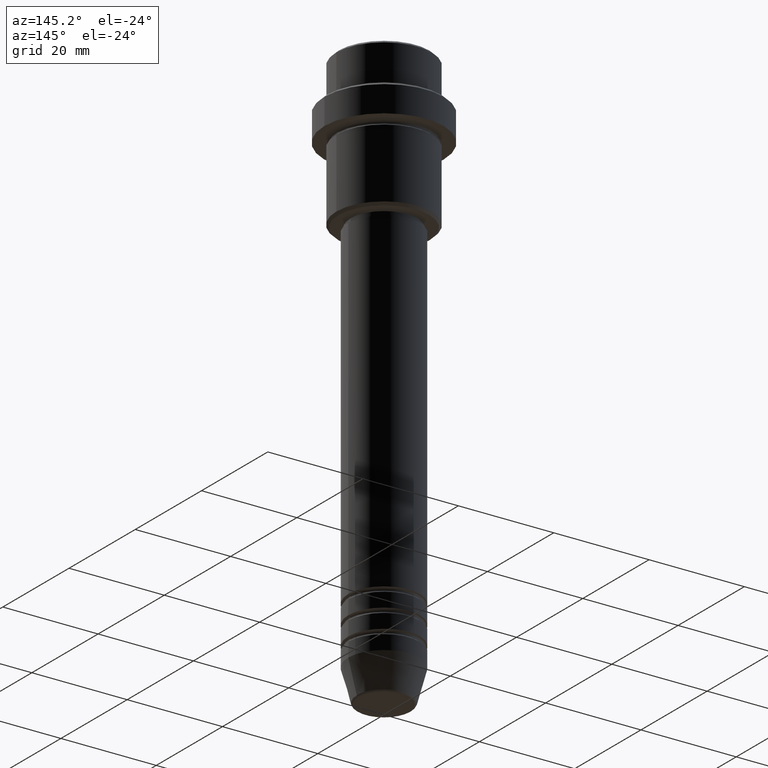
[diagram: clean part render]
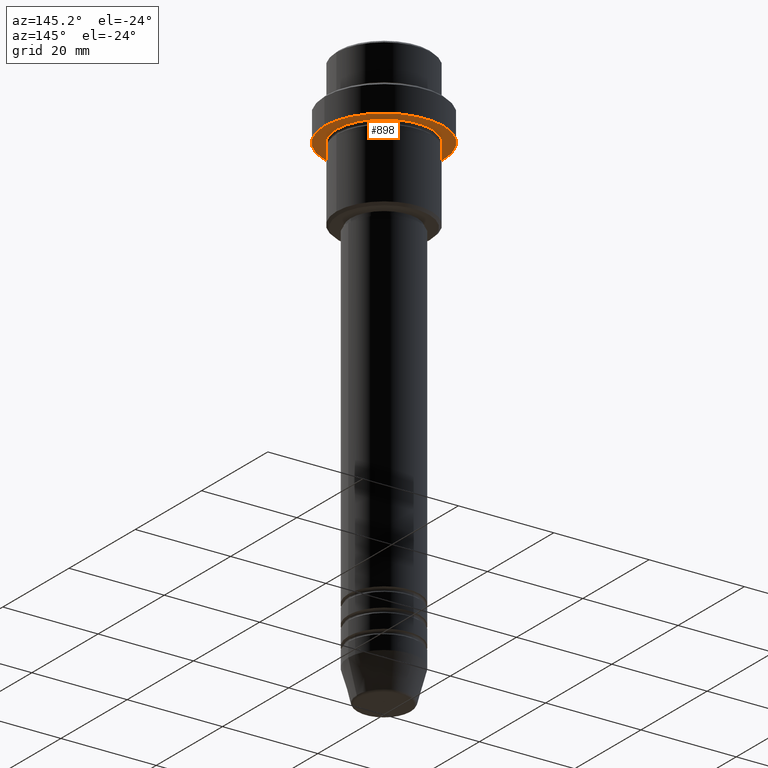
[diagram: same view with one face highlighted and labeled with its STEP entity id]
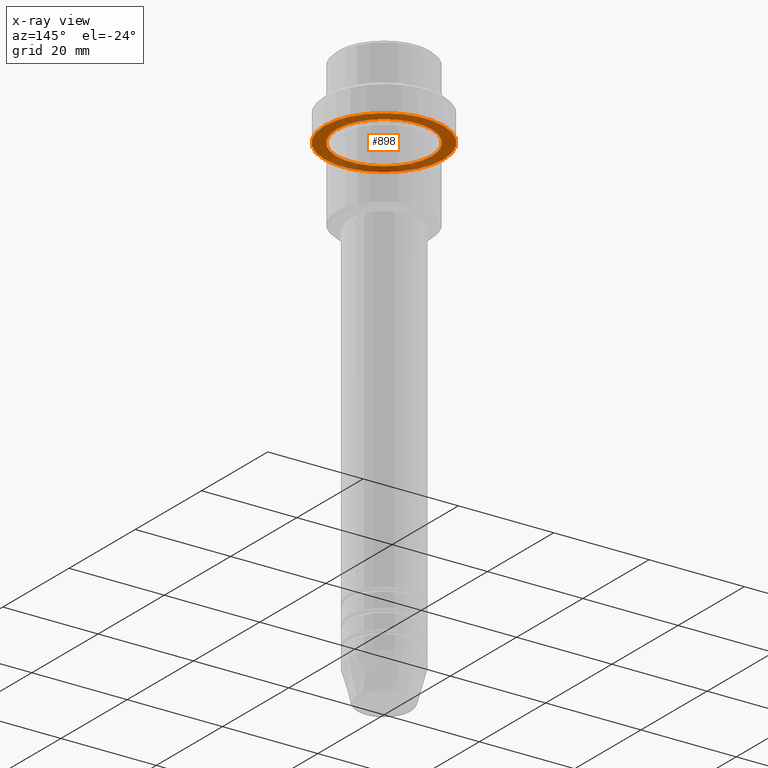
[diagram: x-ray of the same camera — body ghosted, the highlighted face saturated]
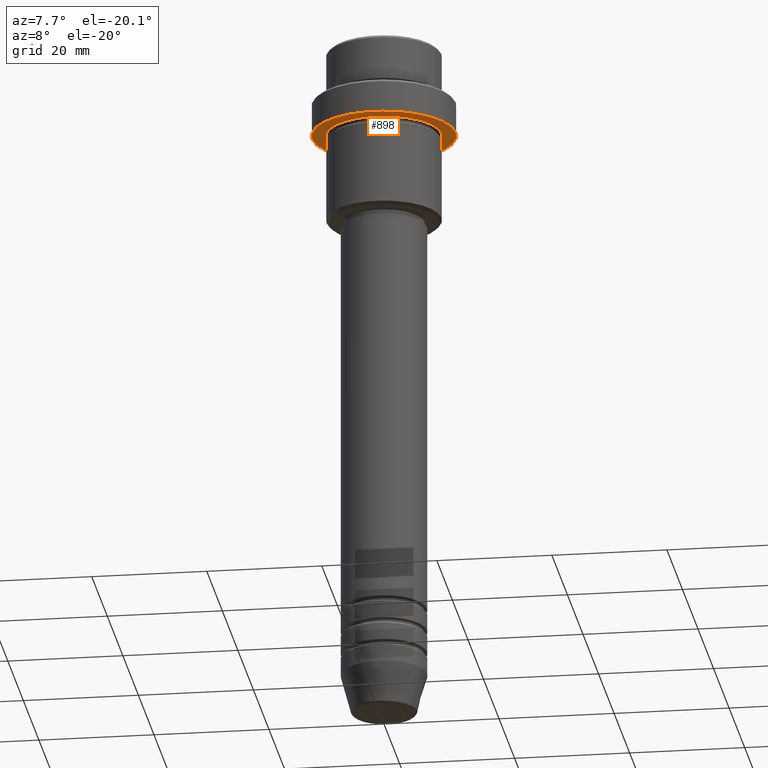
[diagram: same view with one face highlighted and labeled with its STEP entity id]
A machine part, auxiliary view. The second image highlights one B-rep face of the part: STEP entity #898.
The next image is the same camera in x-ray: the body ghosted, the highlighted face saturated — about 29% of this face is hidden behind the body in this view.
A second angle (auxiliary view) of the same face is appended — the face is thin or edge-on in the first view.
In plain terms, the highlighted planar face has unit normal (0, 0, -1).
Its self-contained STEP definition (entity closure, byte-faithful):
#35 = EDGE_CURVE ( 'NONE', #112, #1262, #662, .T. ) ;
#74 = AXIS2_PLACEMENT_3D ( 'NONE', #1397, #385, #825 ) ;
#99 = AXIS2_PLACEMENT_3D ( 'NONE', #869, #129, #1308 ) ;
#112 = VERTEX_POINT ( 'NONE', #1126 ) ;
#129 = DIRECTION ( 'NONE',  ( -0.000000000000000000, -0.000000000000000000, 1.000000000000000000 ) ) ;
#130 = CARTESIAN_POINT ( 'NONE',  ( -12.50000000000000000, 1.530808498934191521E-15, -15.00000000000000000 ) ) ;
#172 = ORIENTED_EDGE ( 'NONE', *, *, #1066, .T. ) ;
#202 = EDGE_CURVE ( 'NONE', #1298, #1340, #1223, .T. ) ;
#262 = AXIS2_PLACEMENT_3D ( 'NONE', #1281, #526, #1403 ) ;
#294 = EDGE_CURVE ( 'NONE', #1340, #1298, #352, .T. ) ;
#348 = DIRECTION ( 'NONE',  ( -1.000000000000000000, 0.000000000000000000, 0.000000000000000000 ) ) ;
#352 = CIRCLE ( 'NONE', #74, 12.50000000000000000 ) ;
#385 = DIRECTION ( 'NONE',  ( -0.000000000000000000, -0.000000000000000000, 1.000000000000000000 ) ) ;
#434 = PLANE ( 'NONE',  #262 ) ;
#447 = CARTESIAN_POINT ( 'NONE',  ( 0.000000000000000000, 0.000000000000000000, -15.00000000000000000 ) ) ;
#526 = DIRECTION ( 'NONE',  ( 0.000000000000000000, 0.000000000000000000, -1.000000000000000000 ) ) ;
#662 = CIRCLE ( 'NONE', #99, 9.999999999999992895 ) ;
#663 = ORIENTED_EDGE ( 'NONE', *, *, #35, .T. ) ;
#688 = CIRCLE ( 'NONE', #714, 9.999999999999992895 ) ;
#714 = AXIS2_PLACEMENT_3D ( 'NONE', #447, #883, #348 ) ;
#804 = DIRECTION ( 'NONE',  ( 1.000000000000000000, 0.000000000000000000, 0.000000000000000000 ) ) ;
#825 = DIRECTION ( 'NONE',  ( 1.000000000000000000, 0.000000000000000000, 0.000000000000000000 ) ) ;
#869 = CARTESIAN_POINT ( 'NONE',  ( 0.000000000000000000, 0.000000000000000000, -15.00000000000000000 ) ) ;
#883 = DIRECTION ( 'NONE',  ( -0.000000000000000000, -0.000000000000000000, 1.000000000000000000 ) ) ;
#898 = ADVANCED_FACE ( 'NONE', ( #1070, #1169 ), #434, .T. ) ;
#905 = CARTESIAN_POINT ( 'NONE',  ( 0.000000000000000000, 0.000000000000000000, -15.00000000000000000 ) ) ;
#940 = EDGE_LOOP ( 'NONE', ( #663, #172 ) ) ;
#1048 = ORIENTED_EDGE ( 'NONE', *, *, #294, .F. ) ;
#1066 = EDGE_CURVE ( 'NONE', #1262, #112, #688, .T. ) ;
#1070 = FACE_BOUND ( 'NONE', #940, .T. ) ;
#1086 = ORIENTED_EDGE ( 'NONE', *, *, #202, .F. ) ;
#1126 = CARTESIAN_POINT ( 'NONE',  ( -9.999999999999992895, 0.000000000000000000, -15.00000000000000000 ) ) ;
#1157 = AXIS2_PLACEMENT_3D ( 'NONE', #905, #1344, #804 ) ;
#1169 = FACE_OUTER_BOUND ( 'NONE', #1398, .T. ) ;
#1200 = CARTESIAN_POINT ( 'NONE',  ( 9.999999999999992895, 1.224646799147352468E-15, -15.00000000000000000 ) ) ;
#1208 = CARTESIAN_POINT ( 'NONE',  ( 12.50000000000000000, 0.000000000000000000, -15.00000000000000000 ) ) ;
#1223 = CIRCLE ( 'NONE', #1157, 12.50000000000000000 ) ;
#1262 = VERTEX_POINT ( 'NONE', #1200 ) ;
#1281 = CARTESIAN_POINT ( 'NONE',  ( 0.000000000000000000, 12.50000000000000000, -15.00000000000000000 ) ) ;
#1298 = VERTEX_POINT ( 'NONE', #130 ) ;
#1308 = DIRECTION ( 'NONE',  ( -1.000000000000000000, 0.000000000000000000, 0.000000000000000000 ) ) ;
#1340 = VERTEX_POINT ( 'NONE', #1208 ) ;
#1344 = DIRECTION ( 'NONE',  ( -0.000000000000000000, -0.000000000000000000, 1.000000000000000000 ) ) ;
#1397 = CARTESIAN_POINT ( 'NONE',  ( 0.000000000000000000, 0.000000000000000000, -15.00000000000000000 ) ) ;
#1398 = EDGE_LOOP ( 'NONE', ( #1048, #1086 ) ) ;
#1403 = DIRECTION ( 'NONE',  ( -1.000000000000000000, 0.000000000000000000, -0.000000000000000000 ) ) ;